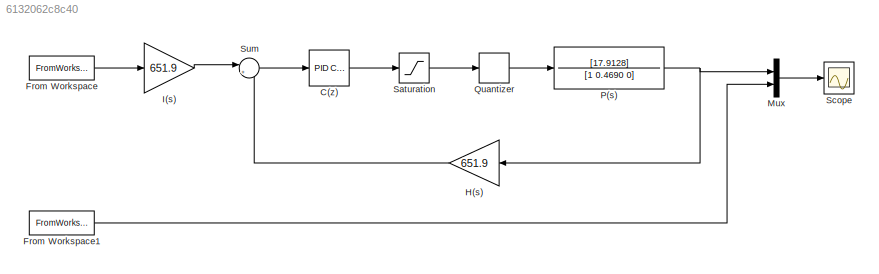
MODEL slx_6132062c8c40
KIND model
CONFIG AbsTol = auto
CONFIG EnableMultiTasking = on
CONFIG FixedStep = 0.002
CONFIG MaxStep = auto
CONFIG MinStep = .0001
CONFIG RelTol = 1e-3
CONFIG SampleTimeConstraint = Unconstrained
CONFIG Solver = VariableStepAuto
CONFIG SolverName = VariableStepAuto
CONFIG StartTime = 0.0
CONFIG StopTime = 1
BLOCK [Reference] C(z)  REF=simulink/Continuous/PID Controller
  Ports = [1, 1]
  SourceBlock = simulink/Continuous/PID Controller
  SourceProductBaseCode = SL
  SourceProductName = Simulink
  SourceType = PID 1dof
BLOCK [FromWorkspace] From Workspace
  VariableName = [T' R']
  ZeroCross = on
BLOCK [FromWorkspace] From Workspace1
  VariableName = [T' Y']
  ZeroCross = on
BLOCK [Gain] H(s)
  Gain = 651.9
  OutDataTypeStr = Inherit: Inherit via internal rule
  ParamDataTypeStr = Inherit: Inherit via internal rule
  SaturateOnIntegerOverflow = off
BLOCK [Gain] I(s)
  Gain = 651.9
  OutDataTypeStr = Inherit: Inherit via internal rule
  ParamDataTypeStr = Inherit: Inherit via internal rule
  SaturateOnIntegerOverflow = off
BLOCK [Mux] Mux
  DisplayOption = bar
  Inputs = 2
  Ports = [2, 1]
BLOCK [TransferFcn] P(s)
  Denominator = [1 0.4690 0]
  Numerator = [17.9128]
BLOCK [Quantizer] Quantizer
  QuantizationInterval = 12/1023
BLOCK [Saturate] Saturation
  InputPortMap = u0
  LowerLimit = -12
  Ports = [1, 1]
  UpperLimit = 12
BLOCK [Scope] Scope
  NumInputPorts = 1
  Ports = [1]
  ScopeSpecificationString = Simulink.scopes.TimeScopeBlockCfg('CurrentConfiguration', extmgr.ConfigurationSet(extmgr.Configuration('Core','General UI',true),extmgr.Configuration('Core','Source UI',true),extmgr.Configuration('Sources','WiredSimulink',true,'DataLoggingLimitDataPoints',true,'DataLoggingSaveFormat','Array','DataLoggingDecimation','1','DataLoggingDecimateData',true),extmgr.Configuration('Visuals','Time Domain',tr...<+2561ch>
BLOCK [Sum] Sum
  IconShape = round
  InputSameDT = off
  Inputs = |+-
  OutDataTypeStr = Inherit: Inherit via internal rule
  Ports = [2, 1]
  SaturateOnIntegerOverflow = off
LINE C(z):1 -> Saturation:1
LINE From Workspace1:1 -> Mux:2
LINE From Workspace:1 -> I(s):1
LINE H(s):1 -> Sum:2
LINE I(s):1 -> Sum:1
LINE Mux:1 -> Scope:1
NET P(s):1 -> H(s):1, Mux:1
LINE Quantizer:1 -> P(s):1
LINE Saturation:1 -> Quantizer:1
LINE Sum:1 -> C(z):1
note: NET lines group one-source signal fan-out (src -> all destinations, sorted); 1:1 wires keep LINE
